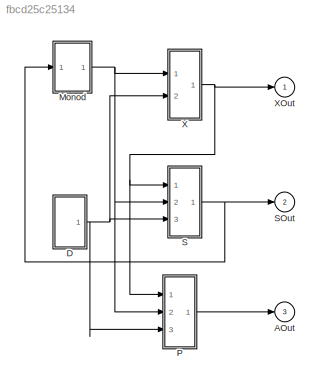
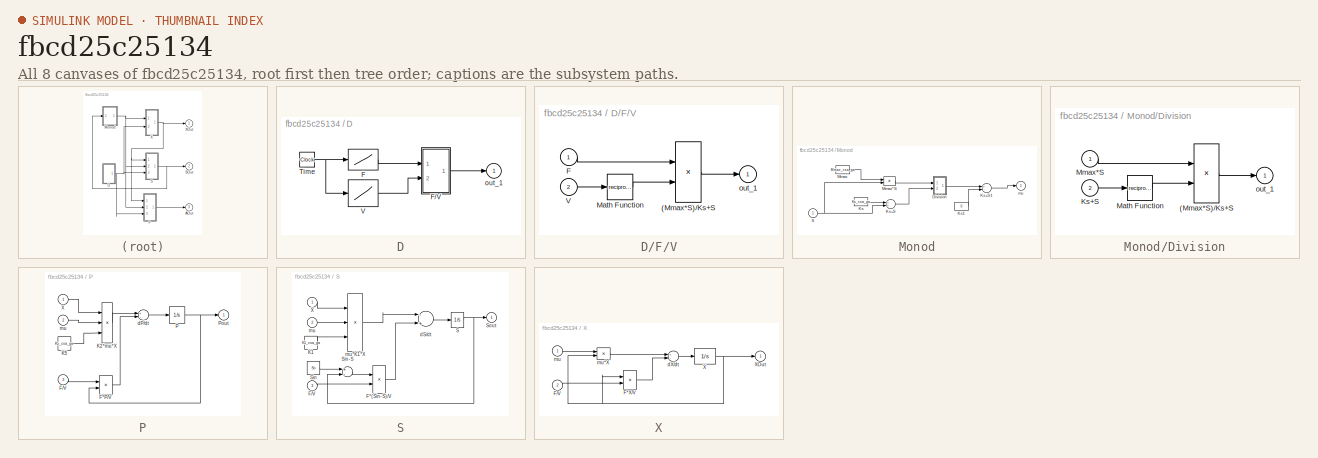
[diagram: thumbnail index - all 8 canvases of the model, root first then tree order]
MODEL slx_fbcd25c25134
KIND model
CONFIG AbsTol = 1e-3
CONFIG EnableMultiTasking = on
CONFIG FixedStep = auto
CONFIG MaxStep = 0.001
CONFIG MinStep = auto
CONFIG RelTol = 1e-3
CONFIG SampleTimeConstraint = Unconstrained
CONFIG Solver = ode45
CONFIG SolverName = ode45
CONFIG StartTime = 4.3
CONFIG StopTime = 9.196
BLOCK [Outport] AOut
  IconDisplay = Port number
  Port = 3
BLOCK [SubSystem] D
  Ports = [0, 1]
  RequestExecContextInheritance = off
  ShowPortLabels = none
  Variant = off
BLOCK [Lookup] D/F
  InputValues = t1
  Table = F1
BLOCK [SubSystem] D/F//V
  Ports = [2, 1]
  RequestExecContextInheritance = off
  ShowPortLabels = none
  Variant = off
BLOCK [Product] D/F//V/(Mmax*S)//Ks+S
  Ports = [2, 1]
BLOCK [Inport] D/F//V/F
  IconDisplay = Port number
BLOCK [Math] D/F//V/Math Function
  Operator = reciprocal
  Ports = [1, 1]
BLOCK [Inport] D/F//V/V
  IconDisplay = Port number
  Port = 2
BLOCK [Outport] D/F//V/out_1
  IconDisplay = Port number
BLOCK [Clock] D/Time
BLOCK [Lookup] D/V
  InputValues = t1
  Table = V1
BLOCK [Outport] D/out_1
  IconDisplay = Port number
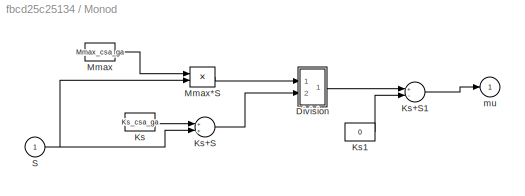
BLOCK [SubSystem] Monod
  Ports = [1, 1]
  RequestExecContextInheritance = off
  ShowPortLabels = none
  Variant = off
BLOCK [SubSystem] Monod/Division
  Ports = [2, 1]
  RequestExecContextInheritance = off
  ShowPortLabels = none
  Variant = off
BLOCK [Product] Monod/Division/(Mmax*S)//Ks+S
  Ports = [2, 1]
BLOCK [Inport] Monod/Division/Ks+S
  IconDisplay = Port number
  Port = 2
BLOCK [Math] Monod/Division/Math Function
  Operator = reciprocal
  Ports = [1, 1]
BLOCK [Inport] Monod/Division/Mmax*S
  IconDisplay = Port number
BLOCK [Outport] Monod/Division/out_1
  IconDisplay = Port number
BLOCK [Constant] Monod/Ks
  Value = Ks_csa_ga
BLOCK [Sum] Monod/Ks+S
  Ports = [2, 1]
BLOCK [Sum] Monod/Ks+S1
  Inputs = +-
  Ports = [2, 1]
BLOCK [Constant] Monod/Ks1
  Value = 0
BLOCK [Constant] Monod/Mmax
  Value = Mmax_csa_ga
BLOCK [Product] Monod/Mmax*S
  Ports = [2, 1]
BLOCK [Inport] Monod/S
  IconDisplay = Port number
BLOCK [Outport] Monod/mu
  IconDisplay = Port number
BLOCK [SubSystem] P
  Ports = [3, 1]
  RequestExecContextInheritance = off
  ShowPortLabels = none
  Variant = off
BLOCK [Product] P/F*P//V
  Ports = [2, 1]
BLOCK [Inport] P/F//V
  IconDisplay = Port number
  Port = 3
BLOCK [Product] P/K2*mu*X
  Inputs = 3
  Ports = [3, 1]
BLOCK [Constant] P/K5
  Value = K5_csa_ga
BLOCK [Integrator] P/P
  InitialCondition = P0
  Ports = [1, 1]
BLOCK [Outport] P/Pout
  IconDisplay = Port number
BLOCK [Inport] P/X
  IconDisplay = Port number
BLOCK [Sum] P/dP//dt
  Inputs = +-
  Ports = [2, 1]
BLOCK [Inport] P/mu
  IconDisplay = Port number
  Port = 2
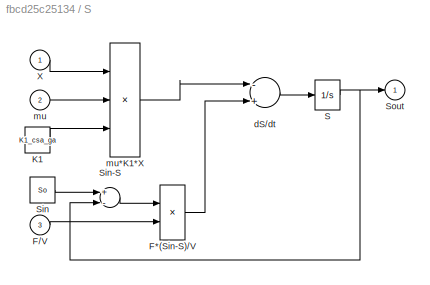
BLOCK [SubSystem] S
  Ports = [3, 1]
  RequestExecContextInheritance = off
  ShowPortLabels = none
  Variant = off
BLOCK [Product] S/F*(Sin-S)//V
  Ports = [2, 1]
BLOCK [Inport] S/F//V
  IconDisplay = Port number
  Port = 3
BLOCK [Constant] S/K1
  Value = K1_csa_ga
BLOCK [Integrator] S/S
  InitialCondition = Sd(1)
  LowerSaturationLimit = 0
  Ports = [1, 1]
  UpperSaturationLimit = 1000
BLOCK [Constant] S/Sin
  Value = So
BLOCK [Sum] S/Sin-S
  Inputs = +-
  Ports = [2, 1]
BLOCK [Outport] S/Sout
  IconDisplay = Port number
BLOCK [Inport] S/X
  IconDisplay = Port number
BLOCK [Sum] S/dS//dt
  Inputs = -+
  Ports = [2, 1]
BLOCK [Inport] S/mu
  IconDisplay = Port number
  Port = 2
BLOCK [Product] S/mu*K1*X
  Inputs = 3
  Ports = [3, 1]
BLOCK [Outport] SOut
  IconDisplay = Port number
  Port = 2
BLOCK [SubSystem] X
  Ports = [2, 1]
  RequestExecContextInheritance = off
  ShowPortLabels = none
  Variant = off
BLOCK [Product] X/F*X//V
  Ports = [2, 1]
BLOCK [Inport] X/F//V
  IconDisplay = Port number
  Port = 2
BLOCK [Integrator] X/X
  InitialCondition = Xd(1)
  LowerSaturationLimit = 0
  Ports = [1, 1]
  UpperSaturationLimit = 1000
BLOCK [Outport] X/XOut
  IconDisplay = Port number
BLOCK [Sum] X/dX//dt
  Inputs = +-
  Ports = [2, 1]
BLOCK [Inport] X/mu
  IconDisplay = Port number
BLOCK [Product] X/mu*X
  Ports = [2, 1]
BLOCK [Outport] XOut
  IconDisplay = Port number
LINE D/F//V/(Mmax*S)//Ks+S:1 -> D/F//V/out_1:1
LINE D/F//V/F:1 -> D/F//V/(Mmax*S)//Ks+S:1
LINE D/F//V/Math Function:1 -> D/F//V/(Mmax*S)//Ks+S:2
LINE D/F//V/V:1 -> D/F//V/Math Function:1
LINE D/F//V:1 -> D/out_1:1
LINE D/F:1 -> D/F//V:1
NET D/Time:1 -> D/F:1, D/V:1
LINE D/V:1 -> D/F//V:2
NET D:1 -> P:3, S:3, X:2
LINE Monod/Division/(Mmax*S)//Ks+S:1 -> Monod/Division/out_1:1
LINE Monod/Division/Ks+S:1 -> Monod/Division/Math Function:1
LINE Monod/Division/Math Function:1 -> Monod/Division/(Mmax*S)//Ks+S:2
LINE Monod/Division/Mmax*S:1 -> Monod/Division/(Mmax*S)//Ks+S:1
LINE Monod/Division:1 -> Monod/Ks+S1:1
LINE Monod/Ks+S1:1 -> Monod/mu:1
LINE Monod/Ks+S:1 -> Monod/Division:2
LINE Monod/Ks1:1 -> Monod/Ks+S1:2
LINE Monod/Ks:1 -> Monod/Ks+S:1
LINE Monod/Mmax*S:1 -> Monod/Division:1
LINE Monod/Mmax:1 -> Monod/Mmax*S:1
NET Monod/S:1 -> Monod/Ks+S:2, Monod/Mmax*S:2
NET Monod:1 -> P:2, S:2, X:1
LINE P/F*P//V:1 -> P/dP//dt:2
LINE P/F//V:1 -> P/F*P//V:1
LINE P/K2*mu*X:1 -> P/dP//dt:1
LINE P/K5:1 -> P/K2*mu*X:3
NET P/P:1 -> P/F*P//V:2, P/Pout:1
LINE P/X:1 -> P/K2*mu*X:1
LINE P/dP//dt:1 -> P/P:1
LINE P/mu:1 -> P/K2*mu*X:2
LINE P:1 -> AOut:1
LINE S/F*(Sin-S)//V:1 -> S/dS//dt:2
LINE S/F//V:1 -> S/F*(Sin-S)//V:2
LINE S/K1:1 -> S/mu*K1*X:3
NET S/S:1 -> S/Sin-S:2, S/Sout:1
LINE S/Sin-S:1 -> S/F*(Sin-S)//V:1
LINE S/Sin:1 -> S/Sin-S:1
LINE S/X:1 -> S/mu*K1*X:1
LINE S/dS//dt:1 -> S/S:1
LINE S/mu*K1*X:1 -> S/dS//dt:1
LINE S/mu:1 -> S/mu*K1*X:2
NET S:1 -> Monod:1, SOut:1
LINE X/F*X//V:1 -> X/dX//dt:2
LINE X/F//V:1 -> X/F*X//V:2
NET X/X:1 -> X/F*X//V:1, X/XOut:1, X/mu*X:2
LINE X/dX//dt:1 -> X/X:1
LINE X/mu*X:1 -> X/dX//dt:1
LINE X/mu:1 -> X/mu*X:1
NET X:1 -> P:1, S:1, XOut:1
note: NET lines group one-source signal fan-out (src -> all destinations, sorted); 1:1 wires keep LINE
